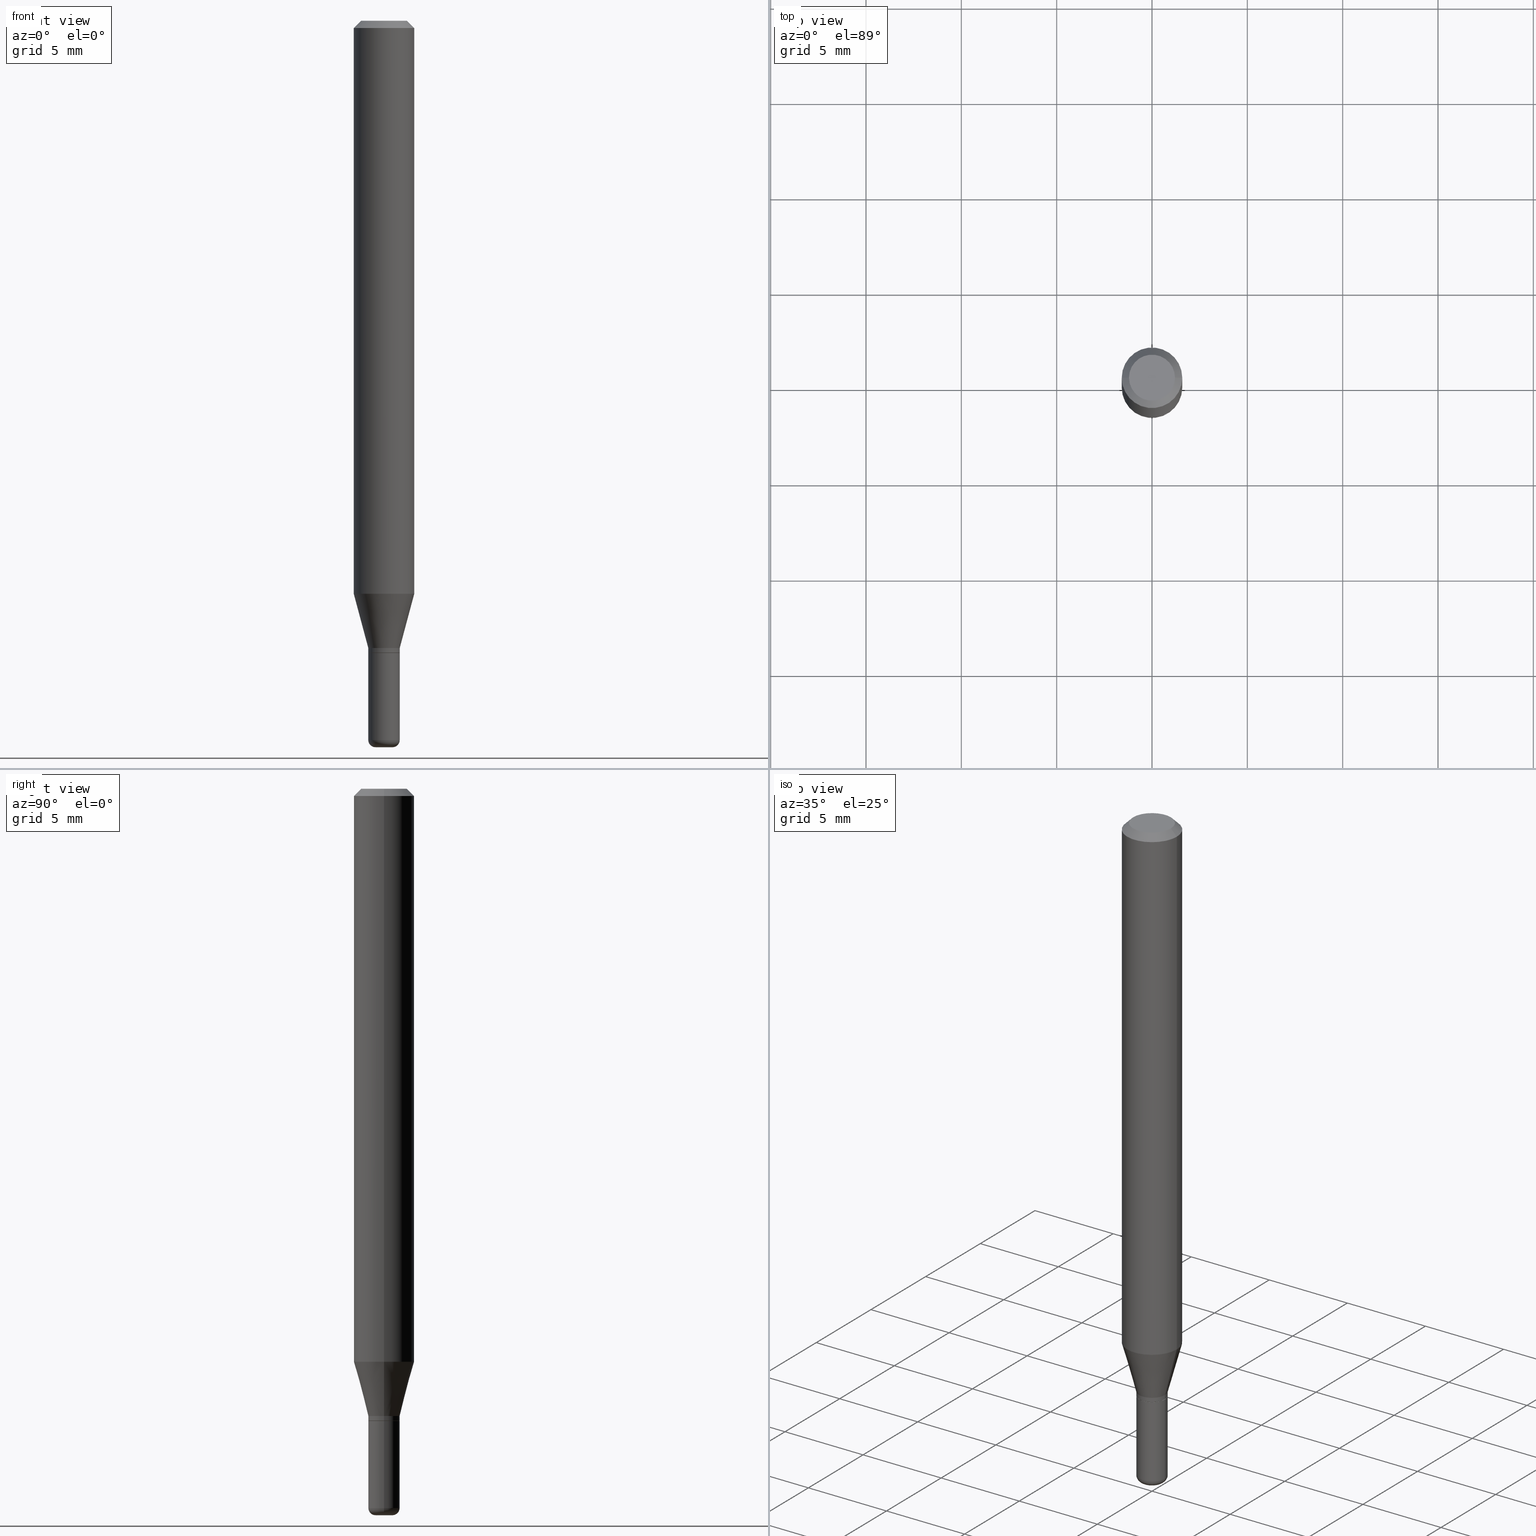
[diagram: canonical four-view strip — front | top / right | iso, engineering-drawing reading convention]
A machine part, canonical four-view strip (front | top / right | iso — engineering-drawing reading convention). The complete STEP part file that produces these views, byte-faithful:
ISO-10303-21;
HEADER;
FILE_DESCRIPTION (( 'STEP AP203' ),
    '1' );
FILE_NAME ('09169.STEP',
    '2024-02-29T22:55:32',
    ( '' ),
    ( '' ),
    'SwSTEP 2.0',
    'SolidWorks 2023',
    '' );
FILE_SCHEMA (( 'CONFIG_CONTROL_DESIGN' ));
ENDSEC;

DATA;
#1 = EDGE_CURVE ( 'NONE', #345, #499, #113, .T. ) ;
#2 = ORIENTED_EDGE ( 'NONE', *, *, #15, .F. ) ;
#3 = DIRECTION ( 'NONE',  ( -2.445468806185136877E-29, 3.491481338843145188E-15, 1.000000000000000000 ) ) ;
#4 = CC_DESIGN_APPROVAL ( #293, ( #149 ) ) ;
#5 = DIRECTION ( 'NONE',  ( -2.445468806185136597E-29, 3.491481338843145583E-15, 1.000000000000000000 ) ) ;
#6 = ORIENTED_EDGE ( 'NONE', *, *, #142, .F. ) ;
#7 = FACE_OUTER_BOUND ( 'NONE', #24, .T. ) ;
#8 = FACE_OUTER_BOUND ( 'NONE', #335, .T. ) ;
#9 = VERTEX_POINT ( 'NONE', #259 ) ;
#10 = ADVANCED_FACE ( 'NONE', ( #234 ), #413, .T. ) ;
#11 = CIRCLE ( 'NONE', #210, 0.01750000000000000167 ) ;
#12 = ORIENTED_EDGE ( 'NONE', *, *, #475, .T. ) ;
#13 = CALENDAR_DATE ( 2024, 29, 2 ) ;
#14 = ORIENTED_EDGE ( 'NONE', *, *, #176, .T. ) ;
#15 = EDGE_CURVE ( 'NONE', #410, #412, #57, .T. ) ;
#16 = ORIENTED_EDGE ( 'NONE', *, *, #176, .F. ) ;
#17 = PERSON_AND_ORGANIZATION ( #433, #360 ) ;
#18 = ORIENTED_EDGE ( 'NONE', *, *, #275, .F. ) ;
#19 = SECURITY_CLASSIFICATION_LEVEL ( 'unclassified' ) ;
#20 = AXIS2_PLACEMENT_3D ( 'NONE', #145, #469, #268 ) ;
#21 = CARTESIAN_POINT ( 'NONE',  ( 3.668203209277632395E-31, -5.237222008264614861E-17, -0.01499999999999970281 ) ) ;
#22 = EDGE_LOOP ( 'NONE', ( #334, #489 ) ) ;
#23 = DIRECTION ( 'NONE',  ( 0.7071067811866199593, -2.468850131083015945E-15, 0.7071067811864750752 ) ) ;
#24 = EDGE_LOOP ( 'NONE', ( #168, #91, #416, #366 ) ) ;
#25 = DIRECTION ( 'NONE',  ( 2.445468806185136597E-29, -3.491481338843145583E-15, -1.000000000000000000 ) ) ;
#26 = ADVANCED_FACE ( 'NONE', ( #390 ), #395, .T. ) ;
#27 = DIRECTION ( 'NONE',  ( 1.000000000000000000, -6.982962677686262766E-15, 0.000000000000000000 ) ) ;
#28 = AXIS2_PLACEMENT_3D ( 'NONE', #312, #353, #316 ) ;
#29 = LINE ( 'NONE', #418, #394 ) ;
#30 = LOCAL_TIME ( 17, 55, 32.00000000000000000, #139 ) ;
#31 = DIRECTION ( 'NONE',  ( -2.445468806185136597E-29, 3.491481338843145583E-15, 1.000000000000000000 ) ) ;
#32 = DIRECTION ( 'NONE',  ( 1.000000000000000000, -6.982962677686258033E-15, 0.000000000000000000 ) ) ;
#33 = ADVANCED_FACE ( 'NONE', ( #232 ), #251, .T. ) ;
#34 =( NAMED_UNIT ( * ) PLANE_ANGLE_UNIT ( ) SI_UNIT ( $, .RADIAN. ) );
#35 = CARTESIAN_POINT ( 'NONE',  ( 2.893083689019520084E-29, -4.130556761294637105E-15, -1.183038475772933751 ) ) ;
#36 = AXIS2_PLACEMENT_3D ( 'NONE', #314, #236, #397 ) ;
#37 = ADVANCED_FACE ( 'NONE', ( #231 ), #514, .F. ) ;
#38 = CARTESIAN_POINT ( 'NONE',  ( 0.000000000000000000, 0.000000000000000000, 0.000000000000000000 ) ) ;
#39 = DIRECTION ( 'NONE',  ( -2.445468806185136597E-29, 3.491481338843145583E-15, 1.000000000000000000 ) ) ;
#40 = AXIS2_PLACEMENT_3D ( 'NONE', #182, #496, #162 ) ;
#41 = CIRCLE ( 'NONE', #28, 0.03199999999999999373 ) ;
#42 = AXIS2_PLACEMENT_3D ( 'NONE', #38, #363, #92 ) ;
#43 = ORIENTED_EDGE ( 'NONE', *, *, #71, .F. ) ;
#44 = FACE_OUTER_BOUND ( 'NONE', #212, .T. ) ;
#45 = ORIENTED_EDGE ( 'NONE', *, *, #275, .T. ) ;
#46 = ORIENTED_EDGE ( 'NONE', *, *, #248, .T. ) ;
#47 = AXIS2_PLACEMENT_3D ( 'NONE', #421, #458, #56 ) ;
#48 = VERTEX_POINT ( 'NONE', #190 ) ;
#49 = DATE_AND_TIME ( #375, #317 ) ;
#50 = EDGE_CURVE ( 'NONE', #220, #453, #315, .T. ) ;
#51 = ORIENTED_EDGE ( 'NONE', *, *, #193, .F. ) ;
#52 = APPROVAL_ROLE ( '' ) ;
#53 = PLANE ( 'NONE',  #146 ) ;
#54 = ORIENTED_EDGE ( 'NONE', *, *, #422, .F. ) ;
#55 = SHAPE_DEFINITION_REPRESENTATION ( #140, #340 ) ;
#56 = DIRECTION ( 'NONE',  ( 1.000000000000000000, -6.982962677686259611E-15, 0.000000000000000000 ) ) ;
#57 = CIRCLE ( 'NONE', #478, 0.04750000000000000749 ) ;
#58 = PERSON_AND_ORGANIZATION ( #433, #360 ) ;
#59 = AXIS2_PLACEMENT_3D ( 'NONE', #392, #428, #356 ) ;
#60 = CIRCLE ( 'NONE', #243, 0.03249999999999998723 ) ;
#61 = FACE_OUTER_BOUND ( 'NONE', #95, .T. ) ;
#62 = ORIENTED_EDGE ( 'NONE', *, *, #515, .T. ) ;
#63 = EDGE_CURVE ( 'NONE', #97, #119, #118, .T. ) ;
#64 = CARTESIAN_POINT ( 'NONE',  ( -0.04750000000000000749, 3.578768372314221353E-16, 2.731847993664239060E-16 ) ) ;
#65 = LINE ( 'NONE', #181, #69 ) ;
#66 = FACE_OUTER_BOUND ( 'NONE', #274, .T. ) ;
#67 = DIRECTION ( 'NONE',  ( 1.000000000000000000, -6.982962677686262766E-15, 0.000000000000000000 ) ) ;
#68 = AXIS2_PLACEMENT_3D ( 'NONE', #152, #74, #264 ) ;
#69 = VECTOR ( 'NONE', #434, 39.37007874015748143 ) ;
#70 = SECURITY_CLASSIFICATION ( '', '', #19 ) ;
#71 = EDGE_CURVE ( 'NONE', #499, #245, #65, .T. ) ;
#72 = DIRECTION ( 'NONE',  ( -2.445468806185136597E-29, 3.491481338843145583E-15, 1.000000000000000000 ) ) ;
#73 = PRODUCT ( '09169', '09169', '', ( #492 ) ) ;
#74 = DIRECTION ( 'NONE',  ( -2.438088387897960049E-29, 3.491481338843145188E-15, 1.000000000000000000 ) ) ;
#75 = DIRECTION ( 'NONE',  ( -2.445468806185136597E-29, 3.491481338843145583E-15, 1.000000000000000000 ) ) ;
#76 = AXIS2_PLACEMENT_3D ( 'NONE', #351, #310, #510 ) ;
#77 = TOROIDAL_SURFACE ( 'NONE', #36, 0.01749999999999999820, 0.01499999999999998557 ) ;
#78 = ORIENTED_EDGE ( 'NONE', *, *, #387, .T. ) ;
#79 = DIRECTION ( 'NONE',  ( -0.7071067811865479058, 2.468850131082261005E-15, -0.7071067811865471286 ) ) ;
#80 = APPLICATION_CONTEXT ( 'configuration controlled 3d designs of mechanical parts and assemblies' ) ;
#81 = VERTEX_POINT ( 'NONE', #189 ) ;
#82 = DIRECTION ( 'NONE',  ( 1.000000000000000000, -6.982962677686266711E-15, 4.852736867747365086E-29 ) ) ;
#83 = AXIS2_PLACEMENT_3D ( 'NONE', #319, #75, #466 ) ;
#84 = EDGE_CURVE ( 'NONE', #410, #119, #115, .T. ) ;
#85 = LOCAL_TIME ( 17, 55, 32.00000000000000000, #288 ) ;
#86 = CARTESIAN_POINT ( 'NONE',  ( 0.03250000000000000111, -4.783329434215109105E-15, -1.305000000000000160 ) ) ;
#87 = EDGE_LOOP ( 'NONE', ( #290, #14 ) ) ;
#88 = EDGE_LOOP ( 'NONE', ( #253, #463, #6, #300 ) ) ;
#89 = COORDINATED_UNIVERSAL_TIME_OFFSET ( 5, 0, .BEHIND. ) ;
#90 = DIRECTION ( 'NONE',  ( 1.000000000000000000, -6.982962677686273021E-15, 0.000000000000000000 ) ) ;
#91 = ORIENTED_EDGE ( 'NONE', *, *, #71, .T. ) ;
#92 = DIRECTION ( 'NONE',  ( 1.000000000000000000, 0.000000000000000000, 0.000000000000000000 ) ) ;
#93 = EDGE_CURVE ( 'NONE', #499, #345, #41, .T. ) ;
#94 = VECTOR ( 'NONE', #282, 39.37007874015748143 ) ;
#95 = EDGE_LOOP ( 'NONE', ( #123, #292, #174, #278 ) ) ;
#96 = PERSON_AND_ORGANIZATION ( #433, #360 ) ;
#97 = VERTEX_POINT ( 'NONE', #473 ) ;
#98 = PERSON_AND_ORGANIZATION ( #433, #360 ) ;
#99 = DIRECTION ( 'NONE',  ( 1.000000000000000000, -6.982962677686265922E-15, 4.876176775795935232E-29 ) ) ;
#100 = DIRECTION ( 'NONE',  ( 1.000000000000000000, -6.982962677686273021E-15, 0.000000000000000000 ) ) ;
#101 = DIRECTION ( 'NONE',  ( -2.445468806185136597E-29, 3.491481338843145583E-15, 1.000000000000000000 ) ) ;
#102 = EDGE_CURVE ( 'NONE', #381, #119, #114, .T. ) ;
#103 = ORIENTED_EDGE ( 'NONE', *, *, #382, .T. ) ;
#104 = AXIS2_PLACEMENT_3D ( 'NONE', #21, #347, #470 ) ;
#105 = DIRECTION ( 'NONE',  ( 0.2588190451025206285, 1.565188264969627095E-15, 0.9659258262890682012 ) ) ;
#106 = CARTESIAN_POINT ( 'NONE',  ( -0.01750000000000000167, -5.033400214283369630E-15, -1.500000000000000222 ) ) ;
#107 = DIRECTION ( 'NONE',  ( 1.000000000000000000, -6.982962677686273021E-15, 0.000000000000000000 ) ) ;
#108 = LINE ( 'NONE', #425, #509 ) ;
#109 = FACE_OUTER_BOUND ( 'NONE', #22, .T. ) ;
#110 = CC_DESIGN_PERSON_AND_ORGANIZATION_ASSIGNMENT ( #17, #135, ( #149 ) ) ;
#111 = FACE_OUTER_BOUND ( 'NONE', #477, .T. ) ;
#112 = DIRECTION ( 'NONE',  ( 1.000000000000000000, -6.982962677686267499E-15, 4.876176775795936353E-29 ) ) ;
#113 = CIRCLE ( 'NONE', #506, 0.03199999999999999373 ) ;
#114 = LINE ( 'NONE', #308, #445 ) ;
#115 = LINE ( 'NONE', #155, #516 ) ;
#116 = EDGE_CURVE ( 'NONE', #327, #381, #497, .T. ) ;
#117 = ORIENTED_EDGE ( 'NONE', *, *, #142, .T. ) ;
#118 = CIRCLE ( 'NONE', #59, 0.06250000000000000000 ) ;
#119 = VERTEX_POINT ( 'NONE', #272 ) ;
#120 = ORIENTED_EDGE ( 'NONE', *, *, #355, .T. ) ;
#121 = CARTESIAN_POINT ( 'NONE',  ( 0.000000000000000000, 0.000000000000000000, 0.000000000000000000 ) ) ;
#122 = DIRECTION ( 'NONE',  ( 1.000000000000000000, -6.982962677686258033E-15, 0.000000000000000000 ) ) ;
#123 = ORIENTED_EDGE ( 'NONE', *, *, #422, .T. ) ;
#124 = AXIS2_PLACEMENT_3D ( 'NONE', #365, #5, #164 ) ;
#125 = AXIS2_PLACEMENT_3D ( 'NONE', #183, #508, #147 ) ;
#126 = DATE_AND_TIME ( #500, #262 ) ;
#127 = DIRECTION ( 'NONE',  ( -2.445468806185136597E-29, 3.491481338843145583E-15, 1.000000000000000000 ) ) ;
#128 = ADVANCED_FACE ( 'NONE', ( #505 ), #359, .T. ) ;
#129 = ORIENTED_EDGE ( 'NONE', *, *, #452, .F. ) ;
#130 = APPROVAL_DATE_TIME ( #126, #293 ) ;
#131 = LINE ( 'NONE', #501, #219 ) ;
#132 = ORIENTED_EDGE ( 'NONE', *, *, #50, .F. ) ;
#133 = CIRCLE ( 'NONE', #125, 0.03249999999999998029 ) ;
#134 = ORIENTED_EDGE ( 'NONE', *, *, #102, .T. ) ;
#135 = PERSON_AND_ORGANIZATION_ROLE ( 'creator' ) ;
#136 =( GEOMETRIC_REPRESENTATION_CONTEXT ( 3 ) GLOBAL_UNCERTAINTY_ASSIGNED_CONTEXT ( ( #329 ) ) GLOBAL_UNIT_ASSIGNED_CONTEXT ( ( #440, #34, #474 ) ) REPRESENTATION_CONTEXT ( 'NONE', 'WORKASPACE' ) );
#137 = DIRECTION ( 'NONE',  ( -2.445468806185136877E-29, 3.491481338843145188E-15, 1.000000000000000000 ) ) ;
#138 = CARTESIAN_POINT ( 'NONE',  ( 3.191336792071603685E-29, -4.556383147190305752E-15, -1.305000000000000160 ) ) ;
#139 = COORDINATED_UNIVERSAL_TIME_OFFSET ( 5, 0, .BEHIND. ) ;
#140 = PRODUCT_DEFINITION_SHAPE ( 'NONE', 'NONE',  #149 ) ;
#141 = DIRECTION ( 'NONE',  ( -2.445468806185136597E-29, 3.491481338843145583E-15, 1.000000000000000000 ) ) ;
#142 = EDGE_CURVE ( 'NONE', #280, #48, #424, .T. ) ;
#143 = ORIENTED_EDGE ( 'NONE', *, *, #159, .T. ) ;
#144 = FACE_OUTER_BOUND ( 'NONE', #87, .T. ) ;
#145 = CARTESIAN_POINT ( 'NONE',  ( 3.668203209277632395E-31, -5.237222008264614861E-17, -0.01499999999999970281 ) ) ;
#146 = AXIS2_PLACEMENT_3D ( 'NONE', #502, #304, #465 ) ;
#147 = DIRECTION ( 'NONE',  ( 1.000000000000000000, -6.982962677686262766E-15, 0.000000000000000000 ) ) ;
#148 = CARTESIAN_POINT ( 'NONE',  ( 3.166882104009752139E-29, -4.521468333801874892E-15, -1.295000000000000151 ) ) ;
#149 = PRODUCT_DEFINITION ( 'UNKNOWN', '', #339, #350 ) ;
#150 = CARTESIAN_POINT ( 'NONE',  ( 0.000000000000000000, 0.000000000000000000, 0.000000000000000000 ) ) ;
#151 = CARTESIAN_POINT ( 'NONE',  ( 0.000000000000000000, 0.000000000000000000, 0.000000000000000000 ) ) ;
#152 = CARTESIAN_POINT ( 'NONE',  ( 3.191336792071603685E-29, -4.556383147190305752E-15, -1.305000000000000160 ) ) ;
#153 = VECTOR ( 'NONE', #79, 39.37007874015748143 ) ;
#154 = CARTESIAN_POINT ( 'NONE',  ( 3.631521177184928138E-29, -5.184849788182071492E-15, -1.485000000000000098 ) ) ;
#155 = CARTESIAN_POINT ( 'NONE',  ( 0.06250000000000000000, -4.811533449433669144E-16, -0.01499999999999970281 ) ) ;
#156 = DIRECTION ( 'NONE',  ( -2.445468806185136597E-29, 3.491481338843145583E-15, 1.000000000000000000 ) ) ;
#157 = ADVANCED_FACE ( 'NONE', ( #109 ), #186, .F. ) ;
#158 = AXIS2_PLACEMENT_3D ( 'NONE', #402, #161, #444 ) ;
#159 = EDGE_CURVE ( 'NONE', #400, #220, #267, .T. ) ;
#160 = CARTESIAN_POINT ( 'NONE',  ( 3.668203209277704895E-29, -5.237222008264718177E-15, -1.500000000000000222 ) ) ;
#161 = DIRECTION ( 'NONE',  ( -2.445468806185136597E-29, 3.491481338843145583E-15, 1.000000000000000000 ) ) ;
#162 = DIRECTION ( 'NONE',  ( 1.000000000000000000, -6.982962677686262766E-15, 0.000000000000000000 ) ) ;
#163 = DIRECTION ( 'NONE',  ( 1.000000000000000000, -6.982962677686265922E-15, 4.876176775795935793E-29 ) ) ;
#164 = DIRECTION ( 'NONE',  ( 1.000000000000000000, -6.982962677686266711E-15, 4.876176775795935793E-29 ) ) ;
#165 = AXIS2_PLACEMENT_3D ( 'NONE', #150, #223, #99 ) ;
#166 = AXIS2_PLACEMENT_3D ( 'NONE', #227, #25, #386 ) ;
#167 = APPROVAL_STATUS ( 'not_yet_approved' ) ;
#168 = ORIENTED_EDGE ( 'NONE', *, *, #1, .T. ) ;
#169 = EDGE_LOOP ( 'NONE', ( #62, #197, #132, #456 ) ) ;
#170 = PERSON_AND_ORGANIZATION ( #433, #360 ) ;
#171 = CARTESIAN_POINT ( 'NONE',  ( -0.03249999999999998723, 2.309263891220324697E-16, -1.598653904332843706E-30 ) ) ;
#172 = CIRCLE ( 'NONE', #276, 0.04750000000000000749 ) ;
#173 = LOCAL_TIME ( 17, 55, 32.00000000000000000, #89 ) ;
#174 = ORIENTED_EDGE ( 'NONE', *, *, #515, .F. ) ;
#175 = APPROVAL_STATUS ( 'not_yet_approved' ) ;
#176 = EDGE_CURVE ( 'NONE', #453, #220, #284, .T. ) ;
#177 = FACE_OUTER_BOUND ( 'NONE', #221, .T. ) ;
#178 = ORIENTED_EDGE ( 'NONE', *, *, #286, .F. ) ;
#179 = APPROVAL_STATUS ( 'not_yet_approved' ) ;
#180 = FACE_OUTER_BOUND ( 'NONE', #240, .T. ) ;
#181 = CARTESIAN_POINT ( 'NONE',  ( -0.03199999999999999373, -4.329009471747073491E-15, -1.305000000000000160 ) ) ;
#182 = CARTESIAN_POINT ( 'NONE',  ( 3.166882104009752139E-29, -4.521468333801874892E-15, -1.295000000000000151 ) ) ;
#183 = CARTESIAN_POINT ( 'NONE',  ( 3.166882104009752139E-29, -4.521468333801874892E-15, -1.295000000000000151 ) ) ;
#184 = EDGE_CURVE ( 'NONE', #412, #97, #362, .T. ) ;
#185 = AXIS2_PLACEMENT_3D ( 'NONE', #476, #349, #107 ) ;
#186 = PLANE ( 'NONE',  #76 ) ;
#187 = AXIS2_PLACEMENT_3D ( 'NONE', #511, #338, #343 ) ;
#188 = CARTESIAN_POINT ( 'NONE',  ( 3.631521177184928138E-29, -5.184849788182071492E-15, -1.485000000000000098 ) ) ;
#189 = CARTESIAN_POINT ( 'NONE',  ( 0.01750000000000000167, -5.359423855124228160E-15, -1.500000000000000222 ) ) ;
#190 = CARTESIAN_POINT ( 'NONE',  ( -0.03249999999999998029, -3.988504748062208899E-15, -1.295000000000000151 ) ) ;
#191 = DIRECTION ( 'NONE',  ( -2.445468806185136597E-29, 3.491481338843145583E-15, 1.000000000000000000 ) ) ;
#192 = AXIS2_PLACEMENT_3D ( 'NONE', #406, #204, #163 ) ;
#193 = EDGE_CURVE ( 'NONE', #327, #97, #201, .T. ) ;
#194 = APPROVAL_PERSON_ORGANIZATION ( #291, #293, #457 ) ;
#195 = CARTESIAN_POINT ( 'NONE',  ( -0.06250000000000000000, 4.440892098500626162E-16, -3.074334431409316114E-30 ) ) ;
#196 = CC_DESIGN_DATE_AND_TIME_ASSIGNMENT ( #216, #370, ( #149 ) ) ;
#197 = ORIENTED_EDGE ( 'NONE', *, *, #208, .T. ) ;
#198 = CARTESIAN_POINT ( 'NONE',  ( -6.680649051745406845E-45, 9.538196290434862081E-31, 2.731847993664263218E-16 ) ) ;
#199 = CIRCLE ( 'NONE', #455, 0.03249999999999999417 ) ;
#200 = CIRCLE ( 'NONE', #252, 0.03249999999999998723 ) ;
#201 = LINE ( 'NONE', #195, #94 ) ;
#202 = ORIENTED_EDGE ( 'NONE', *, *, #93, .F. ) ;
#203 = DIRECTION ( 'NONE',  ( -2.445468806185136597E-29, 3.491481338843145583E-15, 1.000000000000000000 ) ) ;
#204 = DIRECTION ( 'NONE',  ( -2.438088387897960049E-29, 3.491481338843145188E-15, 1.000000000000000000 ) ) ;
#205 = ORIENTED_EDGE ( 'NONE', *, *, #325, .F. ) ;
#206 = CARTESIAN_POINT ( 'NONE',  ( -0.06250000000000000000, -3.686467551444575277E-15, -1.183038475772933751 ) ) ;
#207 = ORIENTED_EDGE ( 'NONE', *, *, #63, .F. ) ;
#208 = EDGE_CURVE ( 'NONE', #9, #453, #238, .T. ) ;
#209 = CLOSED_SHELL ( 'NONE', ( #480, #26, #396, #128, #488, #233 ) ) ;
#210 = AXIS2_PLACEMENT_3D ( 'NONE', #498, #141, #302 ) ;
#211 = EDGE_LOOP ( 'NONE', ( #43, #493, #404, #303 ) ) ;
#212 = EDGE_LOOP ( 'NONE', ( #51, #239, #134, #207 ) ) ;
#213 = DIRECTION ( 'NONE',  ( -2.445468806185136597E-29, 3.491481338843145583E-15, 1.000000000000000000 ) ) ;
#214 = ADVANCED_FACE ( 'NONE', ( #483 ), #279, .T. ) ;
#215 = ORIENTED_EDGE ( 'NONE', *, *, #237, .F. ) ;
#216 = DATE_AND_TIME ( #451, #173 ) ;
#217 = CARTESIAN_POINT ( 'NONE',  ( 0.03249999999999998723, -5.411796075206874844E-15, -1.485000000000000098 ) ) ;
#218 = CLOSED_SHELL ( 'NONE', ( #214, #348, #442, #332, #270, #459, #306, #33, #157, #37, #10, #372 ) ) ;
#219 = VECTOR ( 'NONE', #354, 39.37007874015748854 ) ;
#220 = VERTEX_POINT ( 'NONE', #86 ) ;
#221 = EDGE_LOOP ( 'NONE', ( #215, #446, #78, #419 ) ) ;
#222 = CC_DESIGN_PERSON_AND_ORGANIZATION_ASSIGNMENT ( #58, #298, ( #339 ) ) ;
#223 = DIRECTION ( 'NONE',  ( -2.445468806185136597E-29, 3.491481338843145583E-15, 1.000000000000000000 ) ) ;
#224 = MANIFOLD_SOLID_BREP ( 'Body-Move/Copy2[1]', #209 ) ;
#225 = DIRECTION ( 'NONE',  ( 0.7071067811865479058, -7.319954787623257623E-15, -0.7071067811865471286 ) ) ;
#226 = MANIFOLD_SOLID_BREP ( 'Body-Move/Copy2[2]', #218 ) ;
#227 = CARTESIAN_POINT ( 'NONE',  ( 3.668203209277632395E-31, -5.237222008264614861E-17, -0.01499999999999970281 ) ) ;
#228 = CARTESIAN_POINT ( 'NONE',  ( 0.03249999999999999417, -2.269462870248036484E-16, 1.584757452133678993E-30 ) ) ;
#229 = AXIS2_PLACEMENT_3D ( 'NONE', #326, #321, #122 ) ;
#230 = DIRECTION ( 'NONE',  ( -2.445468806185136597E-29, 3.491481338843145583E-15, 1.000000000000000000 ) ) ;
#231 = FACE_OUTER_BOUND ( 'NONE', #426, .T. ) ;
#232 = FACE_OUTER_BOUND ( 'NONE', #482, .T. ) ;
#233 = ADVANCED_FACE ( 'NONE', ( #8 ), #244, .F. ) ;
#234 = FACE_OUTER_BOUND ( 'NONE', #211, .T. ) ;
#235 = VECTOR ( 'NONE', #105, 39.37007874015748854 ) ;
#236 = DIRECTION ( 'NONE',  ( -2.445468806185136597E-29, 3.491481338843145583E-15, 1.000000000000000000 ) ) ;
#237 = EDGE_CURVE ( 'NONE', #48, #327, #131, .T. ) ;
#238 = LINE ( 'NONE', #399, #388 ) ;
#239 = ORIENTED_EDGE ( 'NONE', *, *, #116, .T. ) ;
#240 = EDGE_LOOP ( 'NONE', ( #205, #45, #103, #373 ) ) ;
#241 = CARTESIAN_POINT ( 'NONE',  ( -0.01749999999999999820, -5.060504809424054243E-15, -1.485000000000000098 ) ) ;
#242 = AXIS2_PLACEMENT_3D ( 'NONE', #35, #191, #67 ) ;
#243 = AXIS2_PLACEMENT_3D ( 'NONE', #188, #383, #468 ) ;
#244 = PLANE ( 'NONE',  #192 ) ;
#245 = VERTEX_POINT ( 'NONE', #247 ) ;
#246 = DIRECTION ( 'NONE',  ( 7.105427357601001859E-15, 1.000000000000000000, -3.491481338843145583E-15 ) ) ;
#247 = CARTESIAN_POINT ( 'NONE',  ( -0.03249999999999999417, -4.323711017398851878E-15, -1.304500000000000215 ) ) ;
#248 = EDGE_CURVE ( 'NONE', #245, #297, #199, .T. ) ;
#249 = ORIENTED_EDGE ( 'NONE', *, *, #387, .F. ) ;
#250 = DATE_AND_TIME ( #13, #30 ) ;
#251 = CONICAL_SURFACE ( 'NONE', #20, 0.06250000000000000000, 0.7853981633974488341 ) ;
#252 = AXIS2_PLACEMENT_3D ( 'NONE', #154, #156, #513 ) ;
#253 = ORIENTED_EDGE ( 'NONE', *, *, #436, .T. ) ;
#254 = PERSON_AND_ORGANIZATION_ROLE ( 'design_owner' ) ;
#255 = CC_DESIGN_PERSON_AND_ORGANIZATION_ASSIGNMENT ( #346, #490, ( #70 ) ) ;
#256 = EDGE_LOOP ( 'NONE', ( #423, #491, #377, #450 ) ) ;
#257 = CALENDAR_DATE ( 2024, 29, 2 ) ;
#258 = DIRECTION ( 'NONE',  ( -2.445468806185136597E-29, 3.491481338843145583E-15, 1.000000000000000000 ) ) ;
#259 = CARTESIAN_POINT ( 'NONE',  ( -0.03249999999999998723, -4.639690078564155857E-15, -1.485000000000000098 ) ) ;
#260 = DIRECTION ( 'NONE',  ( 1.000000000000000000, -6.982962677686262766E-15, 0.000000000000000000 ) ) ;
#261 = AXIS2_PLACEMENT_3D ( 'NONE', #121, #203, #324 ) ;
#262 = LOCAL_TIME ( 17, 55, 32.00000000000000000, #342 ) ;
#263 = VERTEX_POINT ( 'NONE', #106 ) ;
#264 = DIRECTION ( 'NONE',  ( 1.000000000000000000, -6.982962677686265922E-15, 4.876176775795935793E-29 ) ) ;
#265 = CC_DESIGN_PERSON_AND_ORGANIZATION_ASSIGNMENT ( #96, #254, ( #73 ) ) ;
#266 = CARTESIAN_POINT ( 'NONE',  ( 0.06250000000000000000, -4.566991928650029563E-15, -1.183038475772933751 ) ) ;
#267 = LINE ( 'NONE', #228, #305 ) ;
#268 = DIRECTION ( 'NONE',  ( -1.000000000000000000, 6.982962677686266711E-15, 0.000000000000000000 ) ) ;
#269 = AXIS2_PLACEMENT_3D ( 'NONE', #435, #431, #32 ) ;
#270 = ADVANCED_FACE ( 'NONE', ( #409 ), #358, .T. ) ;
#271 = DIRECTION ( 'NONE',  ( -2.445468806185136877E-29, 3.491481338843145188E-15, 1.000000000000000000 ) ) ;
#272 = CARTESIAN_POINT ( 'NONE',  ( 0.06250000000000000000, -4.888073874380378612E-16, -0.01499999999999970281 ) ) ;
#273 = LENGTH_MEASURE_WITH_UNIT ( LENGTH_MEASURE( 0.02539999999999999897 ), #357 );
#274 = EDGE_LOOP ( 'NONE', ( #2, #439, #120, #407 ) ) ;
#275 = EDGE_CURVE ( 'NONE', #263, #81, #337, .T. ) ;
#276 = AXIS2_PLACEMENT_3D ( 'NONE', #198, #127, #82 ) ;
#277 = DIRECTION ( 'NONE',  ( 1.000000000000000000, -6.982962677686261189E-15, 4.883557194083111219E-29 ) ) ;
#278 = ORIENTED_EDGE ( 'NONE', *, *, #382, .F. ) ;
#279 = CYLINDRICAL_SURFACE ( 'NONE', #158, 0.03249999999999998723 ) ;
#280 = VERTEX_POINT ( 'NONE', #408 ) ;
#281 = CARTESIAN_POINT ( 'NONE',  ( 0.03249999999999999417, -4.781583693545688390E-15, -1.304500000000000215 ) ) ;
#282 = DIRECTION ( 'NONE',  ( -2.445468806185136877E-29, 3.491481338843145188E-15, 1.000000000000000000 ) ) ;
#283 = DIRECTION ( 'NONE',  ( 1.000000000000000000, -6.982962677686248567E-15, 0.000000000000000000 ) ) ;
#284 = CIRCLE ( 'NONE', #229, 0.03250000000000000111 ) ;
#285 = DIRECTION ( 'NONE',  ( 1.000000000000000000, -6.982962677686259611E-15, 0.000000000000000000 ) ) ;
#286 = EDGE_CURVE ( 'NONE', #412, #410, #172, .T. ) ;
#287 = ORIENTED_EDGE ( 'NONE', *, *, #237, .T. ) ;
#288 = COORDINATED_UNIVERSAL_TIME_OFFSET ( 5, 0, .BEHIND. ) ;
#289 = DIRECTION ( 'NONE',  ( -2.445468806185136597E-29, 3.491481338843145583E-15, 1.000000000000000000 ) ) ;
#290 = ORIENTED_EDGE ( 'NONE', *, *, #50, .T. ) ;
#291 = PERSON_AND_ORGANIZATION ( #433, #360 ) ;
#292 = ORIENTED_EDGE ( 'NONE', *, *, #325, .T. ) ;
#293 = APPROVAL ( #179, 'UNSPECIFIED' ) ;
#294 = AXIS2_PLACEMENT_3D ( 'NONE', #151, #31, #112 ) ;
#295 = VECTOR ( 'NONE', #137, 39.37007874015748143 ) ;
#296 = CONICAL_SURFACE ( 'NONE', #166, 0.06250000000000000000, 0.7853981633974488341 ) ;
#297 = VERTEX_POINT ( 'NONE', #281 ) ;
#298 = PERSON_AND_ORGANIZATION_ROLE ( 'design_supplier' ) ;
#299 = CARTESIAN_POINT ( 'NONE',  ( 0.04750000000000000749, -4.035134999187568762E-16, 2.731847993664288856E-16 ) ) ;
#300 = ORIENTED_EDGE ( 'NONE', *, *, #475, .F. ) ;
#301 = DATE_TIME_ROLE ( 'classification_date' ) ;
#302 = DIRECTION ( 'NONE',  ( 1.000000000000000000, -6.982962677686248567E-15, 0.000000000000000000 ) ) ;
#303 = ORIENTED_EDGE ( 'NONE', *, *, #248, .F. ) ;
#304 = DIRECTION ( 'NONE',  ( 2.438088387897960049E-29, -3.491481338843145188E-15, -1.000000000000000000 ) ) ;
#305 = VECTOR ( 'NONE', #389, 39.37007874015748143 ) ;
#306 = ADVANCED_FACE ( 'NONE', ( #44 ), #447, .T. ) ;
#307 = AXIS2_PLACEMENT_3D ( 'NONE', #311, #213, #277 ) ;
#308 = CARTESIAN_POINT ( 'NONE',  ( 0.06250000000000000000, -4.364351673553916694E-16, 3.047610484872459871E-30 ) ) ;
#309 = CARTESIAN_POINT ( 'NONE',  ( -0.03250000000000000111, -4.639690078564155857E-15, -1.305000000000000160 ) ) ;
#310 = DIRECTION ( 'NONE',  ( 2.438088387897960049E-29, -3.491481338843145188E-15, -1.000000000000000000 ) ) ;
#311 = CARTESIAN_POINT ( 'NONE',  ( 3.631521177184928138E-29, -5.184849788182071492E-15, -1.485000000000000098 ) ) ;
#312 = CARTESIAN_POINT ( 'NONE',  ( 3.191336792071603685E-29, -4.556383147190305752E-15, -1.305000000000000160 ) ) ;
#313 = PRODUCT_RELATED_PRODUCT_CATEGORY ( 'detail', '', ( #73 ) ) ;
#314 = CARTESIAN_POINT ( 'NONE',  ( 3.631521177184928138E-29, -5.184849788182071492E-15, -1.485000000000000098 ) ) ;
#315 = CIRCLE ( 'NONE', #269, 0.03250000000000000111 ) ;
#316 = DIRECTION ( 'NONE',  ( 1.000000000000000000, -6.982962677686273021E-15, 0.000000000000000000 ) ) ;
#317 = LOCAL_TIME ( 17, 55, 32.00000000000000000, #461 ) ;
#318 = DIMENSIONAL_EXPONENTS ( 1.000000000000000000, 0.000000000000000000, 0.000000000000000000, 0.000000000000000000, 0.000000000000000000, 0.000000000000000000, 0.000000000000000000 ) ;
#319 = CARTESIAN_POINT ( 'NONE',  ( 0.000000000000000000, 0.000000000000000000, 0.000000000000000000 ) ) ;
#320 = CC_DESIGN_PERSON_AND_ORGANIZATION_ASSIGNMENT ( #170, #336, ( #339 ) ) ;
#321 = DIRECTION ( 'NONE',  ( -2.445468806185136597E-29, 3.491481338843145583E-15, 1.000000000000000000 ) ) ;
#322 = APPROVAL_PERSON_ORGANIZATION ( #98, #401, #52 ) ;
#323 = FACE_OUTER_BOUND ( 'NONE', #256, .T. ) ;
#324 = DIRECTION ( 'NONE',  ( 1.000000000000000000, -6.982962677686266711E-15, 4.876176775795935793E-29 ) ) ;
#325 = EDGE_CURVE ( 'NONE', #263, #9, #403, .T. ) ;
#326 = CARTESIAN_POINT ( 'NONE',  ( 3.191336792071603685E-29, -4.556383147190305752E-15, -1.305000000000000160 ) ) ;
#327 = VERTEX_POINT ( 'NONE', #206 ) ;
#328 = CIRCLE ( 'NONE', #104, 0.06250000000000000000 ) ;
#329 = UNCERTAINTY_MEASURE_WITH_UNIT (LENGTH_MEASURE( 1.000000000000000082E-05 ), #440, 'distance_accuracy_value', 'NONE');
#330 = ORIENTED_EDGE ( 'NONE', *, *, #184, .T. ) ;
#331 = APPROVAL_ROLE ( '' ) ;
#332 = ADVANCED_FACE ( 'NONE', ( #323 ), #487, .T. ) ;
#333 = APPLICATION_CONTEXT ( 'configuration controlled 3d designs of mechanical parts and assemblies' ) ;
#334 = ORIENTED_EDGE ( 'NONE', *, *, #286, .T. ) ;
#335 = EDGE_LOOP ( 'NONE', ( #54, #18 ) ) ;
#336 = PERSON_AND_ORGANIZATION_ROLE ( 'creator' ) ;
#337 = CIRCLE ( 'NONE', #484, 0.01750000000000000167 ) ;
#338 = DIRECTION ( 'NONE',  ( -6.982962677686266711E-15, -1.000000000000000000, 3.491481338843145583E-15 ) ) ;
#339 = PRODUCT_DEFINITION_FORMATION_WITH_SPECIFIED_SOURCE ( 'ANY', '', #73, .NOT_KNOWN. ) ;
#340 = ADVANCED_BREP_SHAPE_REPRESENTATION ( '09169', ( #224, #226, #42 ), #136 ) ;
#341 = ORIENTED_EDGE ( 'NONE', *, *, #429, .F. ) ;
#342 = COORDINATED_UNIVERSAL_TIME_OFFSET ( 5, 0, .BEHIND. ) ;
#343 = DIRECTION ( 'NONE',  ( 1.000000000000000000, -6.982962677686273810E-15, 0.000000000000000000 ) ) ;
#344 = CARTESIAN_POINT ( 'NONE',  ( 3.190114057668511444E-29, -4.554637406520884249E-15, -1.304500000000000215 ) ) ;
#345 = VERTEX_POINT ( 'NONE', #368 ) ;
#346 = PERSON_AND_ORGANIZATION ( #433, #360 ) ;
#347 = DIRECTION ( 'NONE',  ( -2.445468806185136597E-29, 3.491481338843145583E-15, 1.000000000000000000 ) ) ;
#348 = ADVANCED_FACE ( 'NONE', ( #7 ), #437, .T. ) ;
#349 = DIRECTION ( 'NONE',  ( -2.445468806185136597E-29, 3.491481338843145583E-15, 1.000000000000000000 ) ) ;
#350 = DESIGN_CONTEXT ( 'detailed design', #333, 'design' ) ;
#351 = CARTESIAN_POINT ( 'NONE',  ( 3.316907271900976589E-16, 0.04750000000000000749, -2.925296391183627249E-17 ) ) ;
#352 = CARTESIAN_POINT ( 'NONE',  ( 0.03249999999999998029, -4.748414620826678245E-15, -1.295000000000000151 ) ) ;
#353 = DIRECTION ( 'NONE',  ( -2.445468806185136597E-29, 3.491481338843145583E-15, 1.000000000000000000 ) ) ;
#354 = DIRECTION ( 'NONE',  ( -0.2588190451025206285, 5.211531920934544731E-15, 0.9659258262890682012 ) ) ;
#355 = EDGE_CURVE ( 'NONE', #119, #97, #328, .T. ) ;
#356 = DIRECTION ( 'NONE',  ( 1.000000000000000000, -6.982962677686266711E-15, 0.000000000000000000 ) ) ;
#357 =( LENGTH_UNIT ( ) NAMED_UNIT ( * ) SI_UNIT ( $, .METRE. ) );
#358 = CONICAL_SURFACE ( 'NONE', #40, 0.03249999999999998029, 0.2617993877991493523 ) ;
#359 = CYLINDRICAL_SURFACE ( 'NONE', #83, 0.03249999999999999417 ) ;
#360 = ORGANIZATION ( 'UNSPECIFIED', 'UNSPECIFIED', '' ) ;
#361 = EDGE_CURVE ( 'NONE', #345, #297, #29, .T. ) ;
#362 = LINE ( 'NONE', #438, #153 ) ;
#363 = DIRECTION ( 'NONE',  ( 0.000000000000000000, 0.000000000000000000, 1.000000000000000000 ) ) ;
#364 = CIRCLE ( 'NONE', #47, 0.03249999999999999417 ) ;
#365 = CARTESIAN_POINT ( 'NONE',  ( 0.000000000000000000, 0.000000000000000000, 0.000000000000000000 ) ) ;
#366 = ORIENTED_EDGE ( 'NONE', *, *, #361, .F. ) ;
#367 = EDGE_CURVE ( 'NONE', #245, #48, #376, .T. ) ;
#368 = CARTESIAN_POINT ( 'NONE',  ( 0.03199999999999999373, -4.779837952876266098E-15, -1.305000000000000160 ) ) ;
#369 = CARTESIAN_POINT ( 'NONE',  ( 3.191336792071603685E-29, -4.556383147190305752E-15, -1.305000000000000160 ) ) ;
#370 = DATE_TIME_ROLE ( 'creation_date' ) ;
#371 = AXIS2_PLACEMENT_3D ( 'NONE', #241, #246, #449 ) ;
#372 = ADVANCED_FACE ( 'NONE', ( #111 ), #427, .T. ) ;
#373 = ORIENTED_EDGE ( 'NONE', *, *, #467, .F. ) ;
#374 = ORIENTED_EDGE ( 'NONE', *, *, #1, .F. ) ;
#375 = CALENDAR_DATE ( 2024, 29, 2 ) ;
#376 = LINE ( 'NONE', #171, #295 ) ;
#377 = ORIENTED_EDGE ( 'NONE', *, *, #355, .F. ) ;
#378 = APPROVAL_DATE_TIME ( #420, #401 ) ;
#379 = AXIS2_PLACEMENT_3D ( 'NONE', #148, #385, #27 ) ;
#380 = CARTESIAN_POINT ( 'NONE',  ( 3.166882104009752139E-29, -4.521468333801874892E-15, -1.295000000000000151 ) ) ;
#381 = VERTEX_POINT ( 'NONE', #266 ) ;
#382 = EDGE_CURVE ( 'NONE', #81, #400, #464, .T. ) ;
#383 = DIRECTION ( 'NONE',  ( -2.445468806185136597E-29, 3.491481338843145583E-15, 1.000000000000000000 ) ) ;
#384 = CARTESIAN_POINT ( 'NONE',  ( 2.893083689019520084E-29, -4.130556761294637105E-15, -1.183038475772933751 ) ) ;
#385 = DIRECTION ( 'NONE',  ( -2.445468806185136597E-29, 3.491481338843145583E-15, 1.000000000000000000 ) ) ;
#386 = DIRECTION ( 'NONE',  ( -1.000000000000000000, 6.982962677686266711E-15, 0.000000000000000000 ) ) ;
#387 = EDGE_CURVE ( 'NONE', #280, #381, #504, .T. ) ;
#388 = VECTOR ( 'NONE', #3, 39.37007874015748143 ) ;
#389 = DIRECTION ( 'NONE',  ( -2.445468806185136877E-29, 3.491481338843145188E-15, 1.000000000000000000 ) ) ;
#390 = FACE_OUTER_BOUND ( 'NONE', #169, .T. ) ;
#391 = CARTESIAN_POINT ( 'NONE',  ( -0.03199999999999999373, -4.326360244572962290E-15, -1.305000000000000160 ) ) ;
#392 = CARTESIAN_POINT ( 'NONE',  ( 3.668203209277632395E-31, -5.237222008264614861E-17, -0.01499999999999970281 ) ) ;
#393 = APPLICATION_PROTOCOL_DEFINITION ( 'international standard', 'config_control_design', 1994, #80 ) ;
#394 = VECTOR ( 'NONE', #23, 39.37007874015748143 ) ;
#395 = CYLINDRICAL_SURFACE ( 'NONE', #294, 0.03249999999999999417 ) ;
#396 = ADVANCED_FACE ( 'NONE', ( #144 ), #53, .F. ) ;
#397 = DIRECTION ( 'NONE',  ( 1.000000000000000000, -6.982962677686261189E-15, 4.883557194083111219E-29 ) ) ;
#398 = ORIENTED_EDGE ( 'NONE', *, *, #367, .F. ) ;
#399 = CARTESIAN_POINT ( 'NONE',  ( -0.03249999999999999417, 2.309263891220325190E-16, -1.598653904332844057E-30 ) ) ;
#400 = VERTEX_POINT ( 'NONE', #217 ) ;
#401 = APPROVAL ( #167, 'UNSPECIFIED' ) ;
#402 = CARTESIAN_POINT ( 'NONE',  ( 0.000000000000000000, 0.000000000000000000, 0.000000000000000000 ) ) ;
#403 = CIRCLE ( 'NONE', #371, 0.01499999999999998730 ) ;
#404 = ORIENTED_EDGE ( 'NONE', *, *, #361, .T. ) ;
#405 = APPROVAL_PERSON_ORGANIZATION ( #417, #411, #331 ) ;
#406 = CARTESIAN_POINT ( 'NONE',  ( 3.582686580359766038E-29, -5.359686688179453325E-15, -1.500000000000000222 ) ) ;
#407 = ORIENTED_EDGE ( 'NONE', *, *, #184, .F. ) ;
#408 = CARTESIAN_POINT ( 'NONE',  ( 0.03249999999999998029, -4.748414620826678245E-15, -1.295000000000000151 ) ) ;
#409 = FACE_OUTER_BOUND ( 'NONE', #485, .T. ) ;
#410 = VERTEX_POINT ( 'NONE', #299 ) ;
#411 = APPROVAL ( #175, 'UNSPECIFIED' ) ;
#412 = VERTEX_POINT ( 'NONE', #64 ) ;
#413 = CONICAL_SURFACE ( 'NONE', #185, 0.03199999999999999373, 0.7853981633975507526 ) ;
#414 = AXIS2_PLACEMENT_3D ( 'NONE', #384, #258, #462 ) ;
#415 = CC_DESIGN_APPROVAL ( #411, ( #339 ) ) ;
#416 = ORIENTED_EDGE ( 'NONE', *, *, #436, .F. ) ;
#417 = PERSON_AND_ORGANIZATION ( #433, #360 ) ;
#418 = CARTESIAN_POINT ( 'NONE',  ( 0.03199999999999999373, -4.779837952876266098E-15, -1.305000000000000160 ) ) ;
#419 = ORIENTED_EDGE ( 'NONE', *, *, #116, .F. ) ;
#420 = DATE_AND_TIME ( #257, #85 ) ;
#421 = CARTESIAN_POINT ( 'NONE',  ( 3.190114057668511444E-29, -4.554637406520884249E-15, -1.304500000000000215 ) ) ;
#422 = EDGE_CURVE ( 'NONE', #81, #263, #11, .T. ) ;
#423 = ORIENTED_EDGE ( 'NONE', *, *, #429, .T. ) ;
#424 = CIRCLE ( 'NONE', #379, 0.03249999999999998029 ) ;
#425 = CARTESIAN_POINT ( 'NONE',  ( 0.03249999999999998723, -2.269462870248035498E-16, 1.584757452133678292E-30 ) ) ;
#426 = EDGE_LOOP ( 'NONE', ( #374, #202 ) ) ;
#427 = CYLINDRICAL_SURFACE ( 'NONE', #165, 0.03249999999999998723 ) ;
#428 = DIRECTION ( 'NONE',  ( -2.445468806185136597E-29, 3.491481338843145583E-15, 1.000000000000000000 ) ) ;
#429 = EDGE_CURVE ( 'NONE', #381, #327, #507, .T. ) ;
#430 = DIRECTION ( 'NONE',  ( -2.445468806185136877E-29, 3.491481338843145188E-15, 1.000000000000000000 ) ) ;
#431 = DIRECTION ( 'NONE',  ( -2.445468806185136597E-29, 3.491481338843145583E-15, 1.000000000000000000 ) ) ;
#432 = AXIS2_PLACEMENT_3D ( 'NONE', #380, #101, #260 ) ;
#433 = PERSON ( 'UNSPECIFIED', 'UNSPECIFIED', 'UNSPECIFIED', ('UNSPECIFIED'), ('UNSPECIFIED'), ('UNSPECIFIED') ) ;
#434 = DIRECTION ( 'NONE',  ( -0.7071067811866199593, 7.493145998870616062E-15, 0.7071067811864750752 ) ) ;
#435 = CARTESIAN_POINT ( 'NONE',  ( 3.191336792071603685E-29, -4.556383147190305752E-15, -1.305000000000000160 ) ) ;
#436 = EDGE_CURVE ( 'NONE', #297, #245, #364, .T. ) ;
#437 = CONICAL_SURFACE ( 'NONE', #471, 0.03199999999999999373, 0.7853981633975507526 ) ;
#438 = CARTESIAN_POINT ( 'NONE',  ( -0.06250000000000000000, 3.840629472727455270E-16, -0.01499999999999970281 ) ) ;
#439 = ORIENTED_EDGE ( 'NONE', *, *, #84, .T. ) ;
#440 =( CONVERSION_BASED_UNIT ( 'INCH', #273 ) LENGTH_UNIT ( ) NAMED_UNIT ( #318 ) );
#441 = ORIENTED_EDGE ( 'NONE', *, *, #208, .F. ) ;
#442 = ADVANCED_FACE ( 'NONE', ( #66 ), #296, .T. ) ;
#443 = ORIENTED_EDGE ( 'NONE', *, *, #84, .F. ) ;
#444 = DIRECTION ( 'NONE',  ( 1.000000000000000000, -6.982962677686265922E-15, 4.876176775795935232E-29 ) ) ;
#445 = VECTOR ( 'NONE', #271, 39.37007874015748143 ) ;
#446 = ORIENTED_EDGE ( 'NONE', *, *, #452, .T. ) ;
#447 = CYLINDRICAL_SURFACE ( 'NONE', #124, 0.06250000000000000000 ) ;
#448 = ORIENTED_EDGE ( 'NONE', *, *, #63, .T. ) ;
#449 = DIRECTION ( 'NONE',  ( -1.000000000000000000, 7.105427357600997126E-15, 0.000000000000000000 ) ) ;
#450 = ORIENTED_EDGE ( 'NONE', *, *, #102, .F. ) ;
#451 = CALENDAR_DATE ( 2024, 29, 2 ) ;
#452 = EDGE_CURVE ( 'NONE', #48, #280, #133, .T. ) ;
#453 = VERTEX_POINT ( 'NONE', #309 ) ;
#454 = APPROVAL_DATE_TIME ( #49, #411 ) ;
#455 = AXIS2_PLACEMENT_3D ( 'NONE', #344, #230, #285 ) ;
#456 = ORIENTED_EDGE ( 'NONE', *, *, #159, .F. ) ;
#457 = APPROVAL_ROLE ( '' ) ;
#458 = DIRECTION ( 'NONE',  ( -2.445468806185136597E-29, 3.491481338843145583E-15, 1.000000000000000000 ) ) ;
#459 = ADVANCED_FACE ( 'NONE', ( #177 ), #479, .T. ) ;
#460 = DIRECTION ( 'NONE',  ( -2.445468806185136597E-29, 3.491481338843145583E-15, 1.000000000000000000 ) ) ;
#461 = COORDINATED_UNIVERSAL_TIME_OFFSET ( 5, 0, .BEHIND. ) ;
#462 = DIRECTION ( 'NONE',  ( 1.000000000000000000, -6.982962677686262766E-15, 0.000000000000000000 ) ) ;
#463 = ORIENTED_EDGE ( 'NONE', *, *, #367, .T. ) ;
#464 = CIRCLE ( 'NONE', #187, 0.01499999999999998730 ) ;
#465 = DIRECTION ( 'NONE',  ( -1.000000000000000000, 6.982962677686265922E-15, -4.876176775795935793E-29 ) ) ;
#466 = DIRECTION ( 'NONE',  ( 1.000000000000000000, -6.982962677686267499E-15, 4.876176775795936353E-29 ) ) ;
#467 = EDGE_CURVE ( 'NONE', #9, #400, #60, .T. ) ;
#468 = DIRECTION ( 'NONE',  ( 1.000000000000000000, -6.982962677686261189E-15, 0.000000000000000000 ) ) ;
#469 = DIRECTION ( 'NONE',  ( 2.445468806185136597E-29, -3.491481338843145583E-15, -1.000000000000000000 ) ) ;
#470 = DIRECTION ( 'NONE',  ( 1.000000000000000000, -6.982962677686266711E-15, 0.000000000000000000 ) ) ;
#471 = AXIS2_PLACEMENT_3D ( 'NONE', #369, #289, #90 ) ;
#472 = TOROIDAL_SURFACE ( 'NONE', #307, 0.01749999999999999820, 0.01499999999999998557 ) ;
#473 = CARTESIAN_POINT ( 'NONE',  ( -0.06250000000000000000, -1.647375280838578884E-15, -0.01499999999999970281 ) ) ;
#474 =( NAMED_UNIT ( * ) SI_UNIT ( $, .STERADIAN. ) SOLID_ANGLE_UNIT ( ) );
#475 = EDGE_CURVE ( 'NONE', #297, #280, #108, .T. ) ;
#476 = CARTESIAN_POINT ( 'NONE',  ( 3.191336792071603685E-29, -4.556383147190305752E-15, -1.305000000000000160 ) ) ;
#477 = EDGE_LOOP ( 'NONE', ( #398, #46, #12, #129 ) ) ;
#478 = AXIS2_PLACEMENT_3D ( 'NONE', #518, #72, #512 ) ;
#479 = CONICAL_SURFACE ( 'NONE', #432, 0.03249999999999998029, 0.2617993877991493523 ) ;
#480 = ADVANCED_FACE ( 'NONE', ( #61 ), #472, .T. ) ;
#481 = EDGE_LOOP ( 'NONE', ( #441, #503, #143, #16 ) ) ;
#482 = EDGE_LOOP ( 'NONE', ( #443, #178, #330, #448 ) ) ;
#483 = FACE_OUTER_BOUND ( 'NONE', #88, .T. ) ;
#484 = AXIS2_PLACEMENT_3D ( 'NONE', #160, #39, #283 ) ;
#485 = EDGE_LOOP ( 'NONE', ( #117, #287, #341, #249 ) ) ;
#486 = CC_DESIGN_APPROVAL ( #401, ( #70 ) ) ;
#487 = CYLINDRICAL_SURFACE ( 'NONE', #261, 0.06250000000000000000 ) ;
#488 = ADVANCED_FACE ( 'NONE', ( #180 ), #77, .T. ) ;
#489 = ORIENTED_EDGE ( 'NONE', *, *, #15, .T. ) ;
#490 = PERSON_AND_ORGANIZATION_ROLE ( 'classification_officer' ) ;
#491 = ORIENTED_EDGE ( 'NONE', *, *, #193, .T. ) ;
#492 = MECHANICAL_CONTEXT ( 'NONE', #80, 'mechanical' ) ;
#493 = ORIENTED_EDGE ( 'NONE', *, *, #93, .T. ) ;
#494 = APPLICATION_PROTOCOL_DEFINITION ( 'international standard', 'config_control_design', 1994, #333 ) ;
#495 = CC_DESIGN_DATE_AND_TIME_ASSIGNMENT ( #250, #301, ( #70 ) ) ;
#496 = DIRECTION ( 'NONE',  ( -2.445468806185136597E-29, 3.491481338843145583E-15, 1.000000000000000000 ) ) ;
#497 = CIRCLE ( 'NONE', #242, 0.06250000000000000000 ) ;
#498 = CARTESIAN_POINT ( 'NONE',  ( 3.668203209277704895E-29, -5.237222008264718177E-15, -1.500000000000000222 ) ) ;
#499 = VERTEX_POINT ( 'NONE', #391 ) ;
#500 = CALENDAR_DATE ( 2024, 29, 2 ) ;
#501 = CARTESIAN_POINT ( 'NONE',  ( -0.03249999999999998029, -4.290541944679842521E-15, -1.295000000000000151 ) ) ;
#502 = CARTESIAN_POINT ( 'NONE',  ( 2.269462870248355479E-16, 0.03249999999999544226, -1.305000000000000160 ) ) ;
#503 = ORIENTED_EDGE ( 'NONE', *, *, #467, .T. ) ;
#504 = LINE ( 'NONE', #352, #235 ) ;
#505 = FACE_OUTER_BOUND ( 'NONE', #481, .T. ) ;
#506 = AXIS2_PLACEMENT_3D ( 'NONE', #138, #460, #100 ) ;
#507 = CIRCLE ( 'NONE', #414, 0.06250000000000000000 ) ;
#508 = DIRECTION ( 'NONE',  ( -2.445468806185136597E-29, 3.491481338843145583E-15, 1.000000000000000000 ) ) ;
#509 = VECTOR ( 'NONE', #430, 39.37007874015748143 ) ;
#510 = DIRECTION ( 'NONE',  ( -1.000000000000000000, 6.982962677686265922E-15, -4.876176775795935793E-29 ) ) ;
#511 = CARTESIAN_POINT ( 'NONE',  ( 0.01749999999999999820, -5.307051635041580686E-15, -1.485000000000000098 ) ) ;
#512 = DIRECTION ( 'NONE',  ( 1.000000000000000000, -6.982962677686266711E-15, 4.852736867747365086E-29 ) ) ;
#513 = DIRECTION ( 'NONE',  ( 1.000000000000000000, -6.982962677686261189E-15, 0.000000000000000000 ) ) ;
#514 = PLANE ( 'NONE',  #68 ) ;
#515 = EDGE_CURVE ( 'NONE', #400, #9, #200, .T. ) ;
#516 = VECTOR ( 'NONE', #225, 39.37007874015748143 ) ;
#517 = CC_DESIGN_SECURITY_CLASSIFICATION ( #70, ( #339 ) ) ;
#518 = CARTESIAN_POINT ( 'NONE',  ( -6.680649051745406845E-45, 9.538196290434862081E-31, 2.731847993664263218E-16 ) ) ;
ENDSEC;
END-ISO-10303-21;
